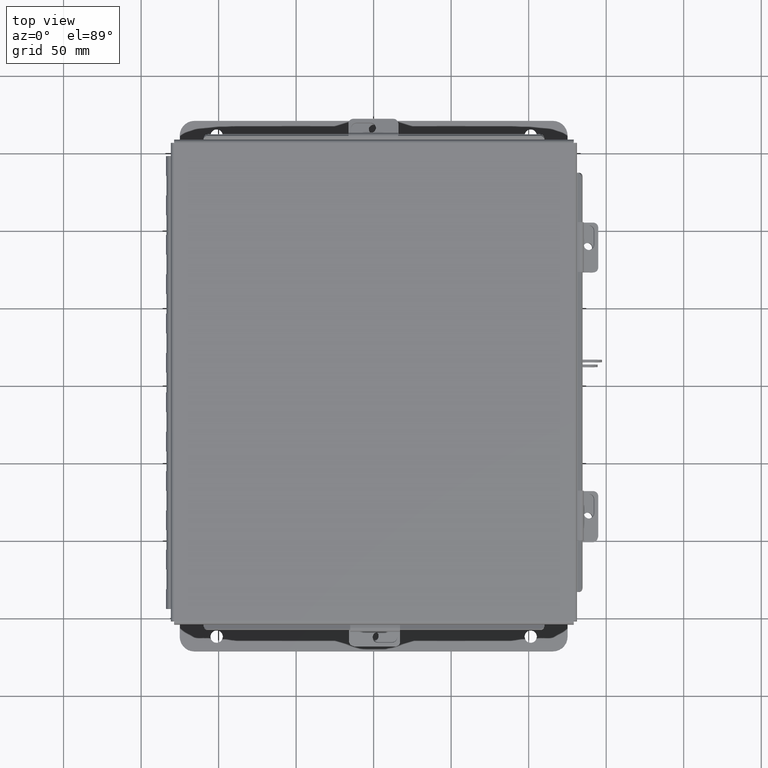
[diagram: clean part render]
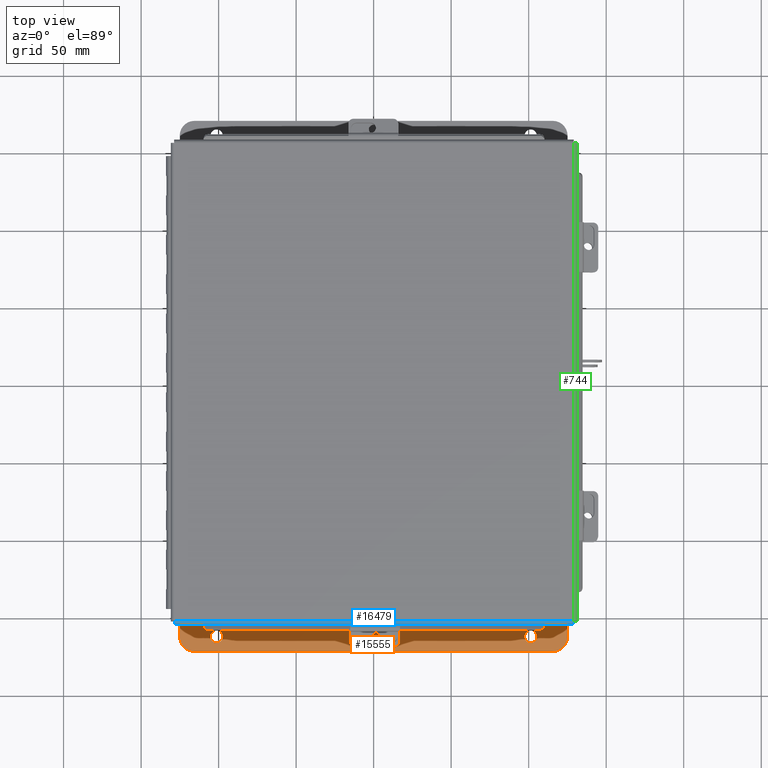
[diagram: same view with three faces highlighted in distinct colors, each labeled with its STEP entity id]
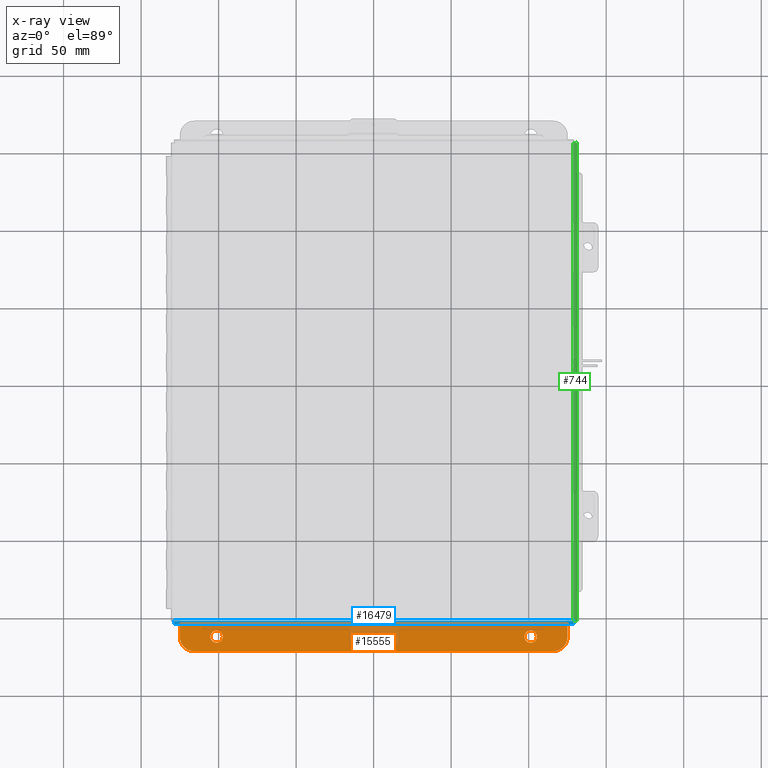
[diagram: x-ray of the same camera — body ghosted, the three highlighted faces saturated]
A machine part, top view with three faces highlighted in distinct colors.
The next image is the same camera in x-ray (body ghosted, the three faces saturated) — at least one of them is partly hidden behind the body in this view.
Their STEP definitions:

[orange] entity #15555 — the highlighted planar face has unit normal (0, -0, 1).
#367 = DIRECTION ( 'NONE',  ( 4.919856193148104900E-031, 1.000000000000000000, -3.702694488566362300E-015 ) ) ;
#440 = CARTESIAN_POINT ( 'NONE',  ( 3.987799999999999100, 0.5188000000000010400, -3.112300000000001200 ) ) ;
#612 = CARTESIAN_POINT ( 'NONE',  ( -4.550300000000000000, 0.7377999999999989000, -3.112300000000002100 ) ) ;
#794 = PLANE ( 'NONE',  #12780 ) ;
#878 = VERTEX_POINT ( 'NONE', #16113 ) ;
#1932 = LINE ( 'NONE', #11826, #12863 ) ;
#2046 = CARTESIAN_POINT ( 'NONE',  ( -4.925300000000000000, 0.01299999999999136600, -3.112299999999999400 ) ) ;
#2704 = CIRCLE ( 'NONE', #13590, 0.3750000000000000600 ) ;
#2740 = VECTOR ( 'NONE', #367, 39.37007874015748100 ) ;
#2773 = DIRECTION ( 'NONE',  ( 0.0000000000000000000, 3.702694488566362300E-015, 1.000000000000000000 ) ) ;
#2958 = EDGE_CURVE ( 'NONE', #4633, #10758, #4352, .T. ) ;
#2969 = AXIS2_PLACEMENT_3D ( 'NONE', #13956, #5763, #15350 ) ;
#3136 = AXIS2_PLACEMENT_3D ( 'NONE', #14893, #6690, #16314 ) ;
#3173 = LINE ( 'NONE', #7198, #2740 ) ;
#3349 = DIRECTION ( 'NONE',  ( 0.0000000000000000000, 3.702694488566362300E-015, 1.000000000000000000 ) ) ;
#3553 = DIRECTION ( 'NONE',  ( -0.0000000000000000000, -3.702694488566362300E-015, -1.000000000000000000 ) ) ;
#3646 = DIRECTION ( 'NONE',  ( -1.000000000000000000, -4.910036603141682400E-031, 0.0000000000000000000 ) ) ;
#3649 = ORIENTED_EDGE ( 'NONE', *, *, #5733, .T. ) ;
#3745 = AXIS2_PLACEMENT_3D ( 'NONE', #15662, #7423, #17027 ) ;
#4241 = CIRCLE ( 'NONE', #16972, 0.1560000000000001700 ) ;
#4352 = LINE ( 'NONE', #16476, #14848 ) ;
#4454 = ORIENTED_EDGE ( 'NONE', *, *, #2958, .F. ) ;
#4633 = VERTEX_POINT ( 'NONE', #612 ) ;
#4753 = VERTEX_POINT ( 'NONE', #8815 ) ;
#4818 = CARTESIAN_POINT ( 'NONE',  ( -3.987800000000000000, 0.2067999999999996000, -3.112300000000004300 ) ) ;
#4927 = CARTESIAN_POINT ( 'NONE',  ( -2.035385365534024800E-024, -1.092739197465705300E-014, -3.112299999999999400 ) ) ;
#5243 = AXIS2_PLACEMENT_3D ( 'NONE', #7007, #2773, #9377 ) ;
#5339 = EDGE_LOOP ( 'NONE', ( #11603, #7202 ) ) ;
#5733 = EDGE_CURVE ( 'NONE', #9473, #10758, #13502, .T. ) ;
#5763 = DIRECTION ( 'NONE',  ( -0.0000000000000000000, -3.702694488566362300E-015, -1.000000000000000000 ) ) ;
#5896 = CARTESIAN_POINT ( 'NONE',  ( 4.925300000000008000, 0.3628000000000008400, -3.112300000000004700 ) ) ;
#5969 = CIRCLE ( 'NONE', #3136, 0.1560000000000001700 ) ;
#6510 = DIRECTION ( 'NONE',  ( 1.000000000000000000, 4.910036603141682400E-031, -0.0000000000000000000 ) ) ;
#6685 = EDGE_CURVE ( 'NONE', #4753, #11335, #8524, .T. ) ;
#6690 = DIRECTION ( 'NONE',  ( -0.0000000000000000000, -3.702694488566362300E-015, -1.000000000000000000 ) ) ;
#6962 = EDGE_CURVE ( 'NONE', #11335, #4753, #4241, .T. ) ;
#7007 = CARTESIAN_POINT ( 'NONE',  ( 4.550299999999999100, 0.3628000000000008400, -3.112300000000000700 ) ) ;
#7198 = CARTESIAN_POINT ( 'NONE',  ( -4.925299999999991100, 0.7377999999999989000, -3.112300000000002100 ) ) ;
#7202 = ORIENTED_EDGE ( 'NONE', *, *, #6685, .T. ) ;
#7423 = DIRECTION ( 'NONE',  ( -0.0000000000000000000, -3.702694488566362300E-015, -1.000000000000000000 ) ) ;
#7460 = CARTESIAN_POINT ( 'NONE',  ( 4.550299999999999100, 0.7378000000000011200, -3.112300000000002100 ) ) ;
#7577 = ORIENTED_EDGE ( 'NONE', *, *, #13842, .F. ) ;
#7856 = FACE_BOUND ( 'NONE', #12659, .T. ) ;
#7992 = CIRCLE ( 'NONE', #3745, 0.1560000000000001700 ) ;
#8276 = ORIENTED_EDGE ( 'NONE', *, *, #16397, .T. ) ;
#8524 = CIRCLE ( 'NONE', #2969, 0.1560000000000001700 ) ;
#8815 = CARTESIAN_POINT ( 'NONE',  ( 3.987799999999999100, 0.2068000000000006800, -3.112299999999999800 ) ) ;
#9025 = DIRECTION ( 'NONE',  ( -4.919856193148104900E-031, -1.000000000000000000, 3.702694488566362300E-015 ) ) ;
#9264 = VERTEX_POINT ( 'NONE', #12315 ) ;
#9377 = DIRECTION ( 'NONE',  ( 0.0000000000000000000, -1.000000000000000000, 4.370956789862820400E-015 ) ) ;
#9450 = ORIENTED_EDGE ( 'NONE', *, *, #15352, .F. ) ;
#9473 = VERTEX_POINT ( 'NONE', #5896 ) ;
#9872 = ORIENTED_EDGE ( 'NONE', *, *, #10246, .F. ) ;
#10122 = EDGE_CURVE ( 'NONE', #11452, #9264, #7992, .T. ) ;
#10246 = EDGE_CURVE ( 'NONE', #9473, #14681, #14223, .T. ) ;
#10631 = FACE_OUTER_BOUND ( 'NONE', #12038, .T. ) ;
#10758 = VERTEX_POINT ( 'NONE', #7460 ) ;
#11335 = VERTEX_POINT ( 'NONE', #440 ) ;
#11452 = VERTEX_POINT ( 'NONE', #4818 ) ;
#11543 = CARTESIAN_POINT ( 'NONE',  ( -4.550300000000000000, 0.3627999999999986800, -3.112300000000000700 ) ) ;
#11603 = ORIENTED_EDGE ( 'NONE', *, *, #6962, .T. ) ;
#11740 = CARTESIAN_POINT ( 'NONE',  ( 3.987799999999999100, 0.3628000000000008400, -3.112300000000000700 ) ) ;
#11826 = CARTESIAN_POINT ( 'NONE',  ( 4.925299999999999100, 0.01300000000000010700, -3.112299999999999400 ) ) ;
#12038 = EDGE_LOOP ( 'NONE', ( #4454, #8276, #9450, #7577, #9872, #3649 ) ) ;
#12315 = CARTESIAN_POINT ( 'NONE',  ( -3.987800000000000000, 0.5187999999999999300, -3.112300000000005600 ) ) ;
#12659 = EDGE_LOOP ( 'NONE', ( #17041, #15715 ) ) ;
#12780 = AXIS2_PLACEMENT_3D ( 'NONE', #4927, #17263, #9025 ) ;
#12863 = VECTOR ( 'NONE', #3646, 39.37007874015748100 ) ;
#12933 = DIRECTION ( 'NONE',  ( 0.0000000000000000000, -1.000000000000000000, 4.370956789862820400E-015 ) ) ;
#13081 = CARTESIAN_POINT ( 'NONE',  ( 4.925299999999999100, 0.0000000000000000000, -3.112299999999999400 ) ) ;
#13140 = DIRECTION ( 'NONE',  ( 0.0000000000000000000, -1.000000000000000000, 3.502369222646487400E-015 ) ) ;
#13410 = VECTOR ( 'NONE', #14427, 39.37007874015748100 ) ;
#13502 = CIRCLE ( 'NONE', #5243, 0.3750000000000000600 ) ;
#13590 = AXIS2_PLACEMENT_3D ( 'NONE', #11543, #3349, #12933 ) ;
#13842 = EDGE_CURVE ( 'NONE', #14681, #15880, #1932, .T. ) ;
#13956 = CARTESIAN_POINT ( 'NONE',  ( 3.987799999999999100, 0.3628000000000008400, -3.112300000000000700 ) ) ;
#13985 = CARTESIAN_POINT ( 'NONE',  ( 4.925299999999999100, 0.01300000000000010700, -3.112299999999999400 ) ) ;
#14223 = LINE ( 'NONE', #13081, #13410 ) ;
#14282 = FACE_BOUND ( 'NONE', #5339, .T. ) ;
#14414 = EDGE_CURVE ( 'NONE', #9264, #11452, #5969, .T. ) ;
#14427 = DIRECTION ( 'NONE',  ( -4.919856193148104900E-031, -1.000000000000000000, 3.702694488566362300E-015 ) ) ;
#14681 = VERTEX_POINT ( 'NONE', #13985 ) ;
#14848 = VECTOR ( 'NONE', #6510, 39.37007874015748100 ) ;
#14893 = CARTESIAN_POINT ( 'NONE',  ( -3.987800000000000000, 0.3627999999999997300, -3.112300000000004700 ) ) ;
#15350 = DIRECTION ( 'NONE',  ( 0.0000000000000000000, -1.000000000000000000, 3.502369222646487400E-015 ) ) ;
#15352 = EDGE_CURVE ( 'NONE', #15880, #878, #3173, .T. ) ;
#15555 = ADVANCED_FACE ( 'NONE', ( #7856, #14282, #10631 ), #794, .T. ) ;
#15662 = CARTESIAN_POINT ( 'NONE',  ( -3.987800000000000000, 0.3627999999999997300, -3.112300000000004700 ) ) ;
#15715 = ORIENTED_EDGE ( 'NONE', *, *, #10122, .T. ) ;
#15880 = VERTEX_POINT ( 'NONE', #2046 ) ;
#16113 = CARTESIAN_POINT ( 'NONE',  ( -4.925299999999991100, 0.3627999999999986800, -3.112300000000004700 ) ) ;
#16314 = DIRECTION ( 'NONE',  ( 0.0000000000000000000, -1.000000000000000000, 3.502369222646487400E-015 ) ) ;
#16397 = EDGE_CURVE ( 'NONE', #4633, #878, #2704, .T. ) ;
#16476 = CARTESIAN_POINT ( 'NONE',  ( 4.925300000000008000, 0.7378000000000011200, -3.112300000000002100 ) ) ;
#16972 = AXIS2_PLACEMENT_3D ( 'NONE', #11740, #3553, #13140 ) ;
#17027 = DIRECTION ( 'NONE',  ( 0.0000000000000000000, -1.000000000000000000, 3.502369222646487400E-015 ) ) ;
#17041 = ORIENTED_EDGE ( 'NONE', *, *, #14414, .T. ) ;
#17263 = DIRECTION ( 'NONE',  ( 0.0000000000000000000, 3.702694488566362300E-015, 1.000000000000000000 ) ) ;

[blue] entity #16479 — the highlighted cylindrical surface (edge-blend (fillet) strip) has radius 2.2276 mm, axis along (-1, 0, -0).
#583 = CARTESIAN_POINT ( 'NONE',  ( -5.072502621458755600, -6.145181066258667900, -0.03116738457852800300 ) ) ;
#1220 = EDGE_CURVE ( 'NONE', #6087, #7536, #13670, .T. ) ;
#1241 = CARTESIAN_POINT ( 'NONE',  ( 5.068550000000001000, -6.068549999999999200, -0.07469999999999993300 ) ) ;
#1837 = EDGE_CURVE ( 'NONE', #6087, #15117, #16566, .T. ) ;
#2080 = VERTEX_POINT ( 'NONE', #4719 ) ;
#2238 = ORIENTED_EDGE ( 'NONE', *, *, #1837, .F. ) ;
#2643 = CARTESIAN_POINT ( 'NONE',  ( -5.069044077682344000, -6.080029903154992300, -0.07469999999999994700 ) ) ;
#2870 = CARTESIAN_POINT ( 'NONE',  ( -5.068549999999998300, -6.068549999999999200, -0.07469999999999993300 ) ) ;
#3044 = CARTESIAN_POINT ( 'NONE',  ( -5.069538155364688800, -6.091505289458308600, -0.07241740374381121200 ) ) ;
#3226 = CARTESIAN_POINT ( 'NONE',  ( -5.073984854505789100, -6.156249999999999100, 0.001520096845007091700 ) ) ;
#3319 = ORIENTED_EDGE ( 'NONE', *, *, #7407, .F. ) ;
#3402 = CARTESIAN_POINT ( 'NONE',  ( -5.073490776823446100, -6.153967403743809700, -0.009955289458309054700 ) ) ;
#3524 = CARTESIAN_POINT ( 'NONE',  ( -5.071020388411720400, -6.122445747341799900, -0.05713078207832041800 ) ) ;
#4012 = CARTESIAN_POINT ( 'NONE',  ( -5.072008543776410900, -6.138680782078318500, -0.04089574734180011200 ) ) ;
#4063 = CARTESIAN_POINT ( 'NONE',  ( -5.070526310729376500, -6.112717384578525400, -0.06363106625866835100 ) ) ;
#4286 = CARTESIAN_POINT ( 'NONE',  ( -5.074478932188133800, -6.156249999999999100, 0.01299999999999977400 ) ) ;
#4610 = CYLINDRICAL_SURFACE ( 'NONE', #7721, 0.08770000000000026400 ) ;
#4719 = CARTESIAN_POINT ( 'NONE',  ( -5.068549999999998300, -6.068549999999999200, -0.07469999999999993300 ) ) ;
#4890 = CARTESIAN_POINT ( 'NONE',  ( 5.074478932188137400, -6.068549999999999200, 0.01300000000000016400 ) ) ;
#4909 = VECTOR ( 'NONE', #12937, 39.37007874015748100 ) ;
#6087 = VERTEX_POINT ( 'NONE', #14944 ) ;
#6106 = CARTESIAN_POINT ( 'NONE',  ( 5.070526310729380100, -6.112717384578528100, -0.06363106625866837800 ) ) ;
#6193 = DIRECTION ( 'NONE',  ( 0.0000000000000000000, -1.000000000000000000, -4.477801015840783100E-015 ) ) ;
#6227 = DIRECTION ( 'NONE',  ( -1.000000000000000000, 2.970179414530265500E-032, 1.300837525747178200E-046 ) ) ;
#6354 = EDGE_CURVE ( 'NONE', #2080, #7536, #15341, .T. ) ;
#6434 = CARTESIAN_POINT ( 'NONE',  ( -5.074478932188133800, -6.156249999999999100, 0.01299999999999977400 ) ) ;
#6755 = EDGE_LOOP ( 'NONE', ( #3319, #2238, #15517, #8632 ) ) ;
#7407 = EDGE_CURVE ( 'NONE', #15117, #2080, #8956, .T. ) ;
#7536 = VERTEX_POINT ( 'NONE', #6434 ) ;
#7721 = AXIS2_PLACEMENT_3D ( 'NONE', #4890, #11713, #6193 ) ;
#8087 = CARTESIAN_POINT ( 'NONE',  ( 5.074478932188137400, -6.156249999999999100, 0.01299999999999978100 ) ) ;
#8632 = ORIENTED_EDGE ( 'NONE', *, *, #6354, .F. ) ;
#8671 = FACE_OUTER_BOUND ( 'NONE', #6755, .T. ) ;
#8956 = LINE ( 'NONE', #17058, #4909 ) ;
#10418 = CARTESIAN_POINT ( 'NONE',  ( 5.068550000000001000, -6.068549999999999200, -0.07469999999999993300 ) ) ;
#11713 = DIRECTION ( 'NONE',  ( 1.000000000000000000, -0.0000000000000000000, -0.0000000000000000000 ) ) ;
#12050 = CARTESIAN_POINT ( 'NONE',  ( 5.072502621458757400, -6.145181066258665200, -0.03116738457852799900 ) ) ;
#12452 = CARTESIAN_POINT ( 'NONE',  ( 5.069538155364688800, -6.091505289458308600, -0.07241740374381121200 ) ) ;
#12852 = CARTESIAN_POINT ( 'NONE',  ( -5.156249999999999100, -6.156249999999999100, 0.01299999999999978100 ) ) ;
#12937 = DIRECTION ( 'NONE',  ( -1.000000000000000000, 0.0000000000000000000, 0.0000000000000000000 ) ) ;
#13554 = CARTESIAN_POINT ( 'NONE',  ( 5.073490776823449600, -6.153967403743810600, -0.009955289458309056500 ) ) ;
#13670 = LINE ( 'NONE', #12852, #16893 ) ;
#14015 = CARTESIAN_POINT ( 'NONE',  ( 5.069044077682345800, -6.080029903154992300, -0.07469999999999994700 ) ) ;
#14944 = CARTESIAN_POINT ( 'NONE',  ( 5.074478932188137400, -6.156249999999999100, 0.01299999999999978100 ) ) ;
#15117 = VERTEX_POINT ( 'NONE', #1241 ) ;
#15160 = CARTESIAN_POINT ( 'NONE',  ( 5.072008543776413500, -6.138680782078320200, -0.04089574734180010500 ) ) ;
#15341 = B_SPLINE_CURVE_WITH_KNOTS ( 'NONE', 3,
 ( #2870, #2643, #3044, #4063, #3524, #4012, #583, #3402, #3226, #4286 ),
 .UNSPECIFIED., .F., .F.,
 ( 4, 2, 2, 2, 4 ),
 ( 0.0000000000000000000, 0.2500000000000000000, 0.5000000000000000000, 0.7500000000000000000, 1.000000000000000000 ),
 .UNSPECIFIED. ) ;
#15517 = ORIENTED_EDGE ( 'NONE', *, *, #1220, .T. ) ;
#16158 = CARTESIAN_POINT ( 'NONE',  ( 5.073984854505792600, -6.156249999999998200, 0.001520096845007091700 ) ) ;
#16479 = ADVANCED_FACE ( 'NONE', ( #8671 ), #4610, .T. ) ;
#16566 = B_SPLINE_CURVE_WITH_KNOTS ( 'NONE', 3,
 ( #8087, #16158, #13554, #12050, #15160, #17195, #6106, #12452, #14015, #10418 ),
 .UNSPECIFIED., .F., .F.,
 ( 4, 2, 2, 2, 4 ),
 ( 0.0000000000000000000, 0.2500000000000000000, 0.5000000000000000000, 0.7500000000000000000, 1.000000000000000000 ),
 .UNSPECIFIED. ) ;
#16893 = VECTOR ( 'NONE', #6227, 39.37007874015748100 ) ;
#17058 = CARTESIAN_POINT ( 'NONE',  ( 5.074478932188137400, -6.068549999999999200, -0.07469999999999993300 ) ) ;
#17195 = CARTESIAN_POINT ( 'NONE',  ( 5.071020388411724900, -6.122445747341800800, -0.05713078207832041800 ) ) ;

[green] entity #744 — the highlighted cylindrical surface (edge-blend (fillet) strip) has radius 2.2276 mm, axis along (-0, -1, -0).
#688 = VERTEX_POINT ( 'NONE', #17280 ) ;
#744 = ADVANCED_FACE ( 'NONE', ( #5959 ), #16486, .T. ) ;
#1806 = CARTESIAN_POINT ( 'NONE',  ( -5.068549999999998300, 6.068550000000001000, -0.07469999999999993300 ) ) ;
#2063 = B_SPLINE_CURVE_WITH_KNOTS ( 'NONE', 3,
 ( #6637, #8015, #2580, #12159, #3951, #13544, #5340, #14898, #6704, #16323 ),
 .UNSPECIFIED., .F., .F.,
 ( 4, 2, 2, 2, 4 ),
 ( 0.0000000000000000000, 0.2500000000000000000, 0.5000000000000000000, 0.7500000000000000000, 1.000000000000000000 ),
 .UNSPECIFIED. ) ;
#2080 = VERTEX_POINT ( 'NONE', #4719 ) ;
#2104 = B_SPLINE_CURVE_WITH_KNOTS ( 'NONE', 3,
 ( #7409, #13946, #13717, #16668, #3017, #16546, #2714, #16266, #14968, #6649 ),
 .UNSPECIFIED., .F., .F.,
 ( 4, 2, 2, 2, 4 ),
 ( 0.0000000000000000000, 0.2500000000000000000, 0.5000000000000000000, 0.7500000000000000000, 1.000000000000000000 ),
 .UNSPECIFIED. ) ;
#2574 = CARTESIAN_POINT ( 'NONE',  ( -5.156249999999999100, 6.074478932188137400, 0.01299999999999977400 ) ) ;
#2580 = CARTESIAN_POINT ( 'NONE',  ( -5.153967403743809700, -6.073490776823447800, -0.009955289458309056500 ) ) ;
#2714 = CARTESIAN_POINT ( 'NONE',  ( -5.145181066258666100, 6.072502621458758300, -0.03116738457852800300 ) ) ;
#2781 = AXIS2_PLACEMENT_3D ( 'NONE', #16364, #3218, #14556 ) ;
#3017 = CARTESIAN_POINT ( 'NONE',  ( -5.122445747341799000, 6.071020388411723100, -0.05713078207832041800 ) ) ;
#3218 = DIRECTION ( 'NONE',  ( 0.0000000000000000000, -1.000000000000000000, 0.0000000000000000000 ) ) ;
#3751 = VERTEX_POINT ( 'NONE', #2574 ) ;
#3951 = CARTESIAN_POINT ( 'NONE',  ( -5.138680782078319400, -6.072008543776412600, -0.04089574734180010500 ) ) ;
#4547 = ORIENTED_EDGE ( 'NONE', *, *, #5499, .F. ) ;
#4719 = CARTESIAN_POINT ( 'NONE',  ( -5.068549999999998300, -6.068549999999999200, -0.07469999999999993300 ) ) ;
#5102 = EDGE_LOOP ( 'NONE', ( #4547, #17269, #13623, #8228 ) ) ;
#5340 = CARTESIAN_POINT ( 'NONE',  ( -5.112717384578526300, -6.070526310729377400, -0.06363106625866837800 ) ) ;
#5499 = EDGE_CURVE ( 'NONE', #2080, #5628, #12866, .T. ) ;
#5628 = VERTEX_POINT ( 'NONE', #1806 ) ;
#5712 = EDGE_CURVE ( 'NONE', #5628, #3751, #2104, .T. ) ;
#5959 = FACE_OUTER_BOUND ( 'NONE', #5102, .T. ) ;
#5986 = VECTOR ( 'NONE', #9674, 39.37007874015748100 ) ;
#6637 = CARTESIAN_POINT ( 'NONE',  ( -5.156249999999999100, -6.074478932188134700, 0.01299999999999978100 ) ) ;
#6649 = CARTESIAN_POINT ( 'NONE',  ( -5.156249999999999100, 6.074478932188137400, 0.01299999999999977400 ) ) ;
#6679 = CARTESIAN_POINT ( 'NONE',  ( -5.156249999999999100, 6.156249999999999100, 0.01299999999999978100 ) ) ;
#6704 = CARTESIAN_POINT ( 'NONE',  ( -5.080029903154990500, -6.069044077682343100, -0.07469999999999994700 ) ) ;
#7409 = CARTESIAN_POINT ( 'NONE',  ( -5.068549999999998300, 6.068550000000001000, -0.07469999999999993300 ) ) ;
#8015 = CARTESIAN_POINT ( 'NONE',  ( -5.156249999999999100, -6.073984854505789100, 0.001520096845007091700 ) ) ;
#8228 = ORIENTED_EDGE ( 'NONE', *, *, #5712, .F. ) ;
#8448 = VECTOR ( 'NONE', #17623, 39.37007874015748100 ) ;
#9674 = DIRECTION ( 'NONE',  ( -0.0000000000000000000, 1.000000000000000000, -0.0000000000000000000 ) ) ;
#10485 = EDGE_CURVE ( 'NONE', #688, #2080, #2063, .T. ) ;
#12159 = CARTESIAN_POINT ( 'NONE',  ( -5.145181066258666100, -6.072502621458755600, -0.03116738457852799900 ) ) ;
#12540 = LINE ( 'NONE', #6679, #8448 ) ;
#12866 = LINE ( 'NONE', #14228, #5986 ) ;
#13544 = CARTESIAN_POINT ( 'NONE',  ( -5.122445747341797300, -6.071020388411723100, -0.05713078207832041800 ) ) ;
#13623 = ORIENTED_EDGE ( 'NONE', *, *, #16729, .T. ) ;
#13717 = CARTESIAN_POINT ( 'NONE',  ( -5.091505289458308600, 6.069538155364688800, -0.07241740374381121200 ) ) ;
#13946 = CARTESIAN_POINT ( 'NONE',  ( -5.080029903154990500, 6.069044077682344900, -0.07469999999999994700 ) ) ;
#14228 = CARTESIAN_POINT ( 'NONE',  ( -5.068549999999998300, -6.074478932188134700, -0.07469999999999993300 ) ) ;
#14556 = DIRECTION ( 'NONE',  ( -1.000000000000000000, 0.0000000000000000000, -4.477801015840783100E-015 ) ) ;
#14898 = CARTESIAN_POINT ( 'NONE',  ( -5.091505289458308600, -6.069538155364689700, -0.07241740374381121200 ) ) ;
#14968 = CARTESIAN_POINT ( 'NONE',  ( -5.156249999999999100, 6.073984854505791700, 0.001520096845007091700 ) ) ;
#16266 = CARTESIAN_POINT ( 'NONE',  ( -5.153967403743811500, 6.073490776823449600, -0.009955289458309054700 ) ) ;
#16323 = CARTESIAN_POINT ( 'NONE',  ( -5.068549999999998300, -6.068549999999999200, -0.07469999999999993300 ) ) ;
#16364 = CARTESIAN_POINT ( 'NONE',  ( -5.068549999999998300, -6.074478932188134700, 0.01300000000000016400 ) ) ;
#16486 = CYLINDRICAL_SURFACE ( 'NONE', #2781, 0.08770000000000026400 ) ;
#16546 = CARTESIAN_POINT ( 'NONE',  ( -5.138680782078321100, 6.072008543776413500, -0.04089574734180011200 ) ) ;
#16668 = CARTESIAN_POINT ( 'NONE',  ( -5.112717384578525400, 6.070526310729379200, -0.06363106625866835100 ) ) ;
#16729 = EDGE_CURVE ( 'NONE', #688, #3751, #12540, .T. ) ;
#17269 = ORIENTED_EDGE ( 'NONE', *, *, #10485, .F. ) ;
#17280 = CARTESIAN_POINT ( 'NONE',  ( -5.156249999999999100, -6.074478932188134700, 0.01299999999999978100 ) ) ;
#17623 = DIRECTION ( 'NONE',  ( -0.0000000000000000000, 1.000000000000000000, -0.0000000000000000000 ) ) ;